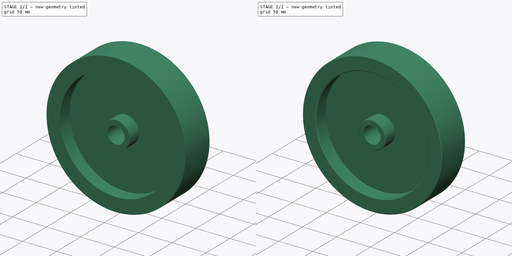
[diagram: build sequence overview — one tinted view per stage of 2, left to right]
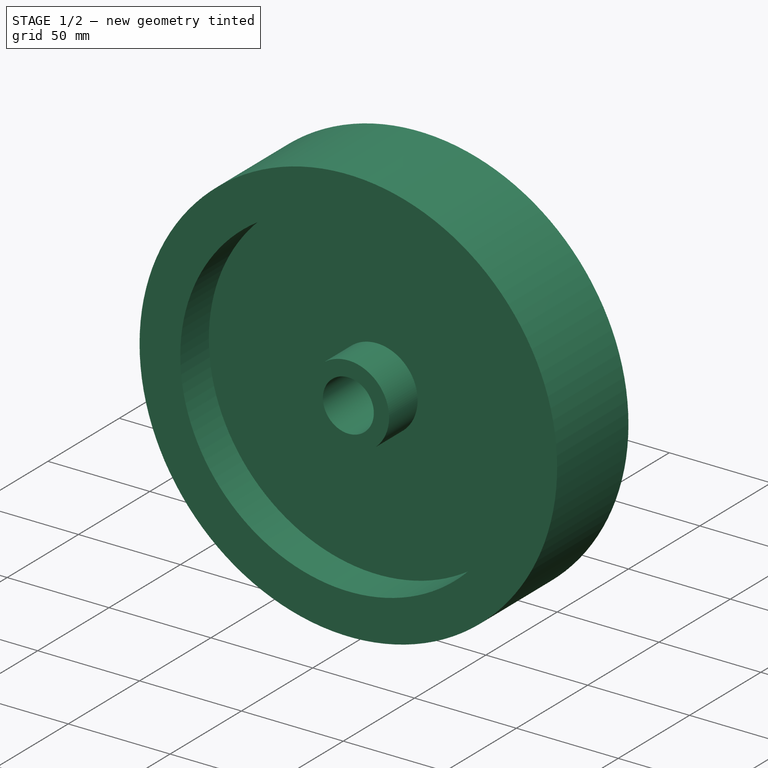
[diagram: stage 1 of 2 — iso view after this stage's code; geometry added in this stage tinted green]
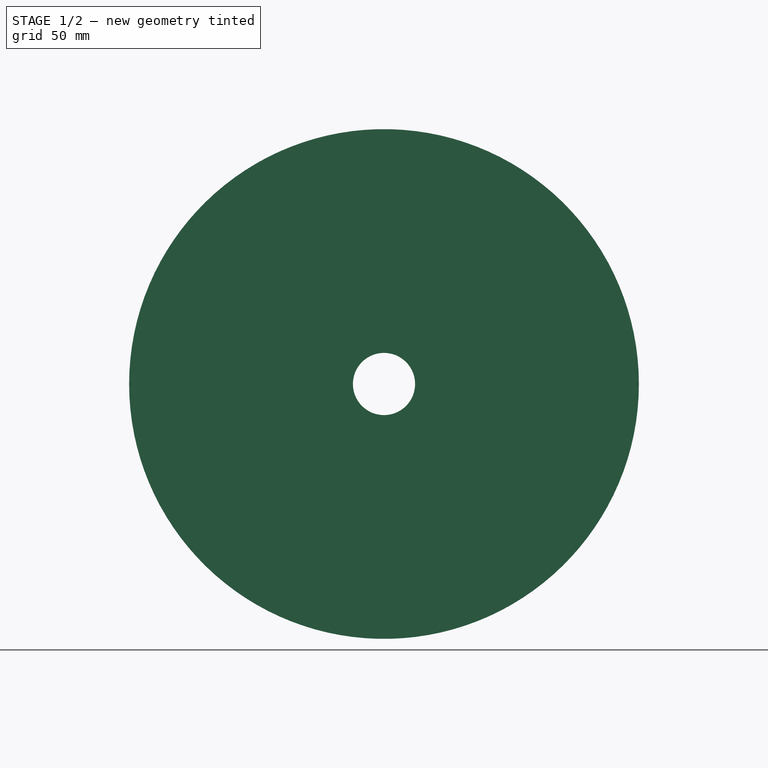
[diagram: stage 1 of 2 — front view after this stage's code; geometry added in this stage tinted green]
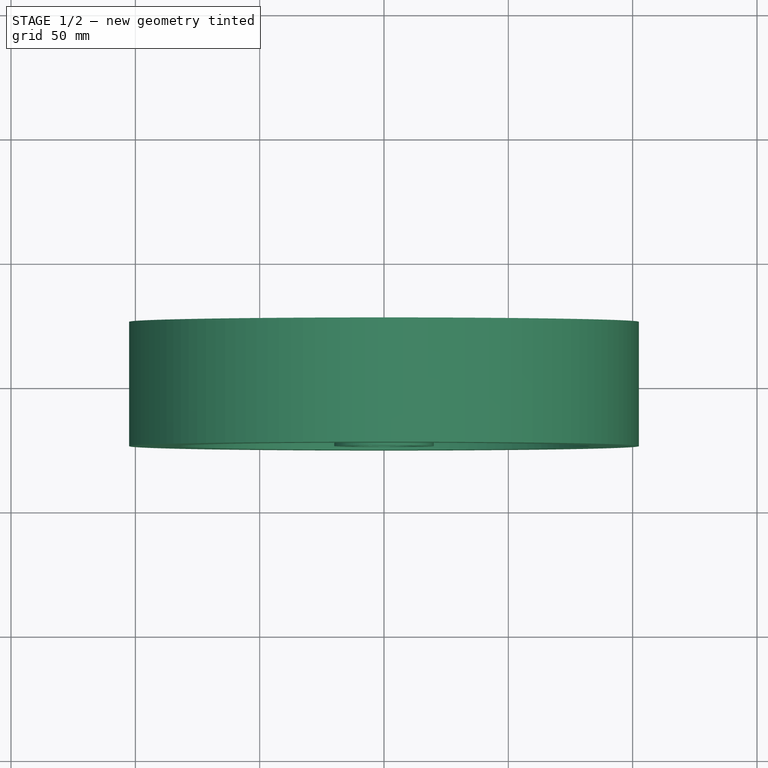
[diagram: stage 1 of 2 — top view after this stage's code; geometry added in this stage tinted green]
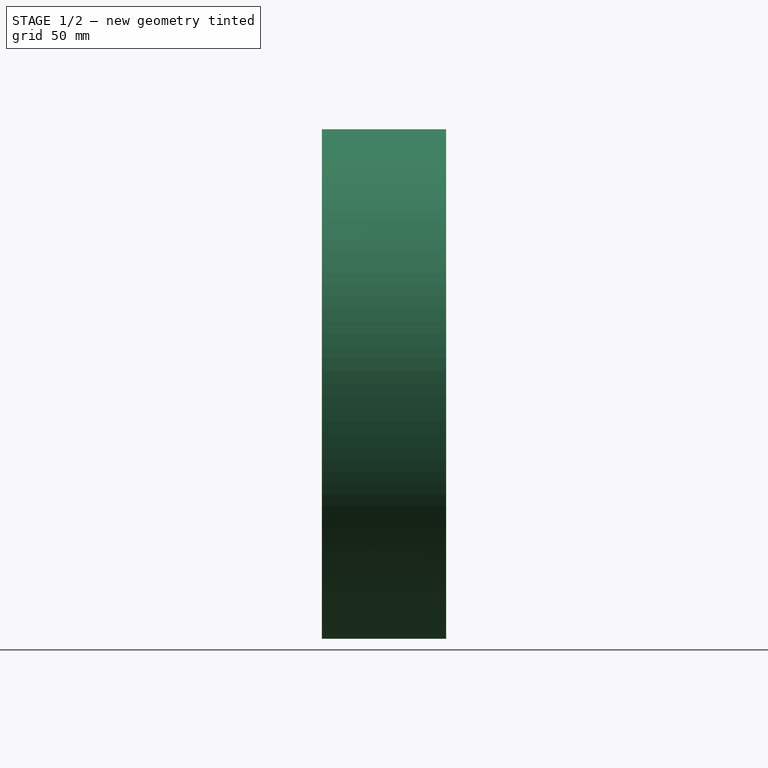
[diagram: stage 1 of 2 — right view after this stage's code; geometry added in this stage tinted green]
FCSTD DOCUMENT  (FreeCAD 0.21R33668 +26 (Git))
Label: hovairGuidageGalet
License: All rights reserved
LicenseURL: http://en.wikipedia.org/wiki/All_rights_reserved
objects: Sketcher::SketchObject×1, PartDesign::Revolution×1, PartDesign::Chamfer×1, PartDesign::Body×1
note: 6 computed .brp shape members not serialized (recipe doc carries the construction recipe); baked Part::Feature solids carry a one-line shape summary decoded from their .brp

FEATURE [Sketcher::SketchObject] Sketch
  FullyConstrained = false
  MapMode = 5
  Support = -> [XY_Plane]
  sketch-geometry (15):
    g0: LineSegment StartX=-102.5 StartY=1e-16 StartZ=0 EndX=-102.5 EndY=25 EndZ=0
    g1: LineSegment StartX=-102.5 StartY=25 StartZ=0 EndX=-82.5 EndY=25 EndZ=0
    g2: LineSegment StartX=-82.5 StartY=25 StartZ=0 EndX=-82.5 EndY=5 EndZ=0
    g3: LineSegment StartX=-82.5 StartY=5 StartZ=0 EndX=-20 EndY=5 EndZ=0
    g4: LineSegment StartX=-20 StartY=5 StartZ=0 EndX=-20 EndY=25 EndZ=0
    g5: LineSegment StartX=-20 StartY=25 StartZ=0 EndX=-12.5 EndY=25 EndZ=0
    g6: LineSegment StartX=-12.5 StartY=25 StartZ=0 EndX=-12.5 EndY=0 EndZ=0
    g7: LineSegment StartX=-158.478 StartY=0 StartZ=0 EndX=75.116 EndY=0 EndZ=0
    g8: LineSegment StartX=-102.5 StartY=1e-16 StartZ=0 EndX=-102.5 EndY=-25 EndZ=0
    g9: LineSegment StartX=-102.5 StartY=-25 StartZ=0 EndX=-82.5 EndY=-25 EndZ=0
    g10: LineSegment StartX=-82.5 StartY=-25 StartZ=0 EndX=-82.5 EndY=-5 EndZ=0
    g11: LineSegment StartX=-82.5 StartY=-5 StartZ=0 EndX=-20 EndY=-5 EndZ=0
    g12: LineSegment StartX=-20 StartY=-5 StartZ=0 EndX=-20 EndY=-25 EndZ=0
    g13: LineSegment StartX=-20 StartY=-25 StartZ=0 EndX=-12.5 EndY=-25 EndZ=0
    g14: LineSegment StartX=-12.5 StartY=-25 StartZ=0 EndX=-12.5 EndY=0 EndZ=0
  constraints (45):
    c: Coincident(g0,g1)
    c: Coincident(g1,g2)
    c: Coincident(g2,g3)
    c: Coincident(g3,g4)
    c: Coincident(g4,g5)
    c: Coincident(g5,g6)
    c: Distance(g0) = 25
    c: Distance(g1) = 20
    c: Distance(g2) = 20
    c: Distance(g5) = 7.5
    c: Vertical(g0)
    c: Vertical(g2)
    c: Vertical(g4)
    c: Vertical(g6)
    c: Horizontal(g1)
    c: Horizontal(g3)
    c: Horizontal(g5)
    c: Equal(g0,g6)
    c: Equal(g2,g4)
    c: Distance(g0,g6) = 90
    c: DistanceX(g6,g-1) = 12.5
    c: DistanceY(g-1,g6) = 0
    c: Horizontal(g7)
    c: DistanceY(g7,g-1) = 0
    c: Coincident(g8,g9)
    c: Coincident(g9,g10)
    c: Coincident(g10,g11)
    c: Coincident(g11,g12)
    c: Coincident(g12,g13)
    c: Coincident(g13,g14)
    c: Distance(g8) = 25
    c: Distance(g9) = 20
    c: Distance(g10) = 20
    c: Distance(g13) = 7.5
    c: Vertical(g8)
    c: Vertical(g10)
    c: Vertical(g12)
    c: Vertical(g14)
    c: Horizontal(g9)
    c: Horizontal(g11)
    c: Horizontal(g13)
    c: Equal(g8,g14)
    c: Equal(g10,g12)
    c: Distance(g8,g14) = 90
    c: Coincident(g8,g0)
FEATURE [PartDesign::Revolution] Revolution
  Angle = 360
  Axis = (0,1,0)
  Base = (0,0,0)
  Profile = -> Sketch
  ReferenceAxis = -> Sketch [V_Axis]
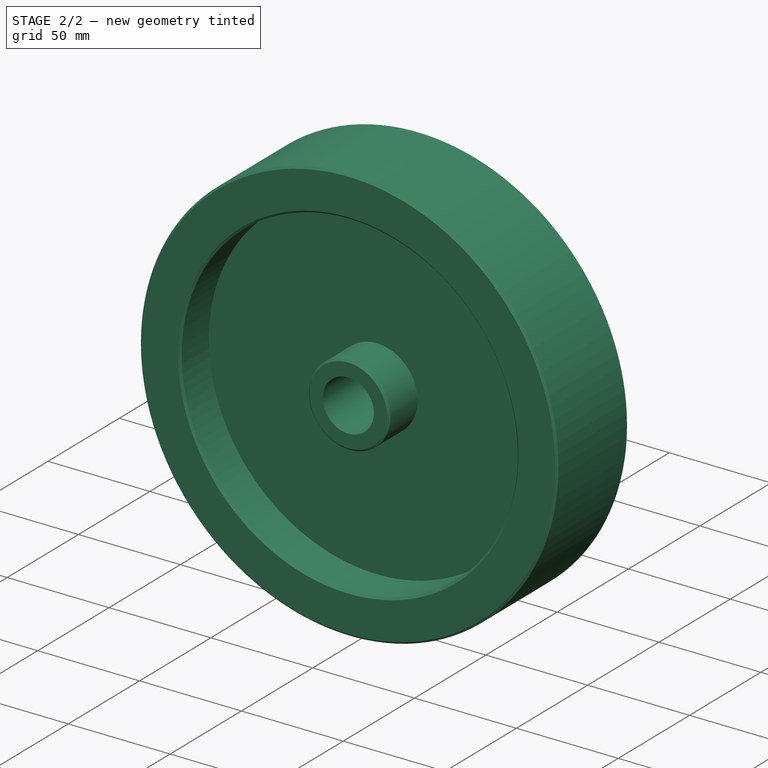
[diagram: stage 2 of 2 — iso view after this stage's code; geometry added in this stage tinted green]
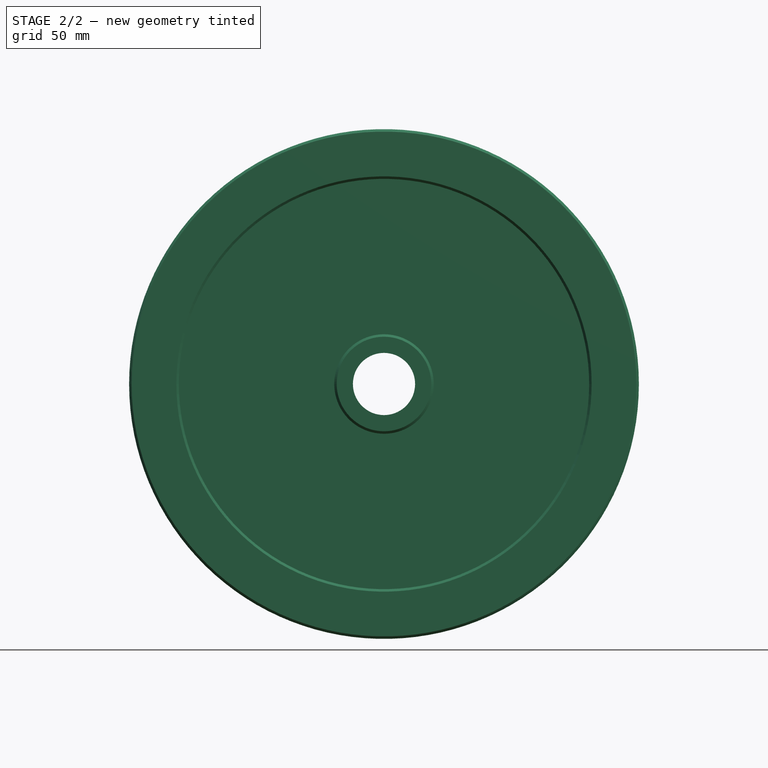
[diagram: stage 2 of 2 — front view after this stage's code; geometry added in this stage tinted green]
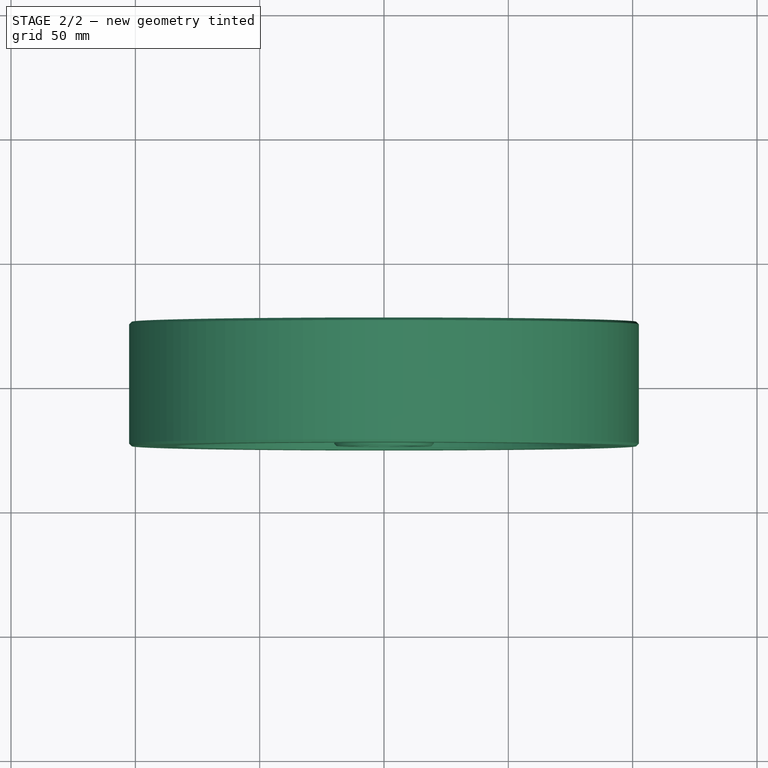
[diagram: stage 2 of 2 — top view after this stage's code; geometry added in this stage tinted green]
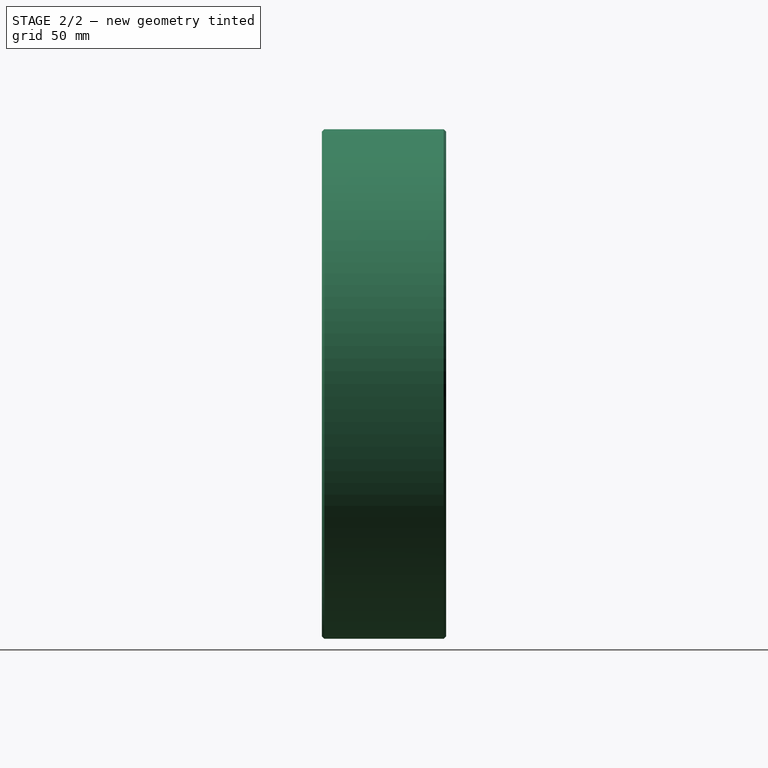
[diagram: stage 2 of 2 — right view after this stage's code; geometry added in this stage tinted green]
FEATURE [PartDesign::Chamfer] Chamfer
  Angle = 45
  Base = -> Revolution [Edge4,Edge21,Edge2,Edge8,Edge19,Edge15]
  BaseFeature = -> Revolution
  ChamferType = 0
  FlipDirection = false
  Size = 1
  Size2 = 1
  SupportTransform = false
  UseAllEdges = false
FEATURE [PartDesign::Body] Body  label="Corps"
  Group = -> [Sketch,Revolution,Chamfer]
  Origin = -> Origin
  Tip = -> Chamfer
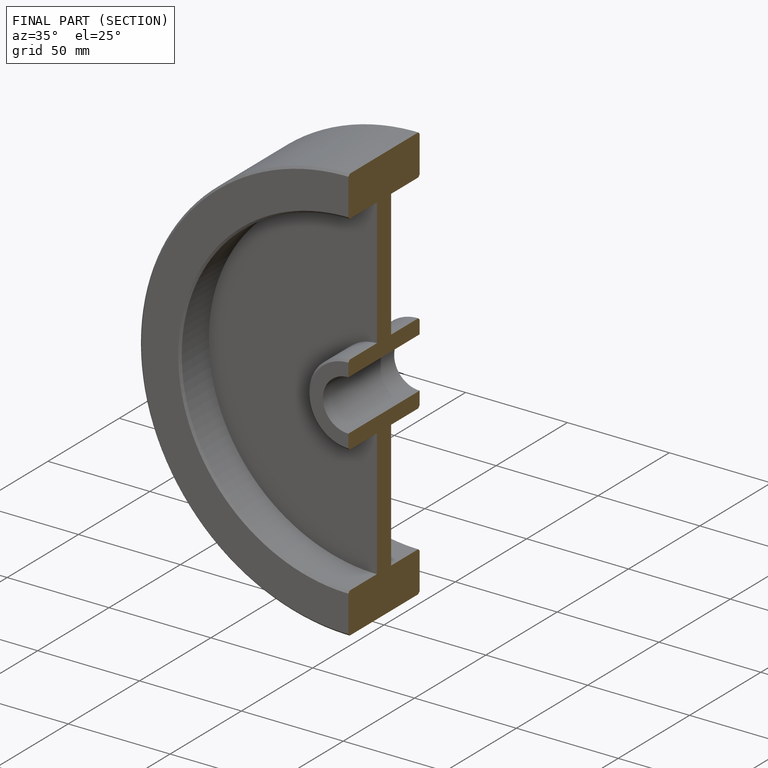
[diagram: finished part — half-section view (interior)]
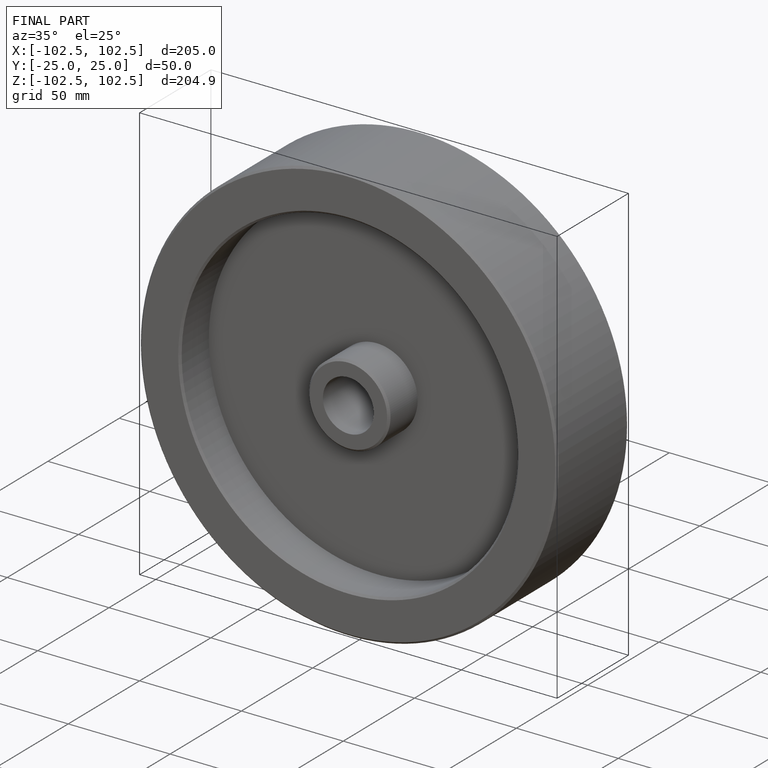
[diagram: finished part — iso view with bounding-box wireframe]
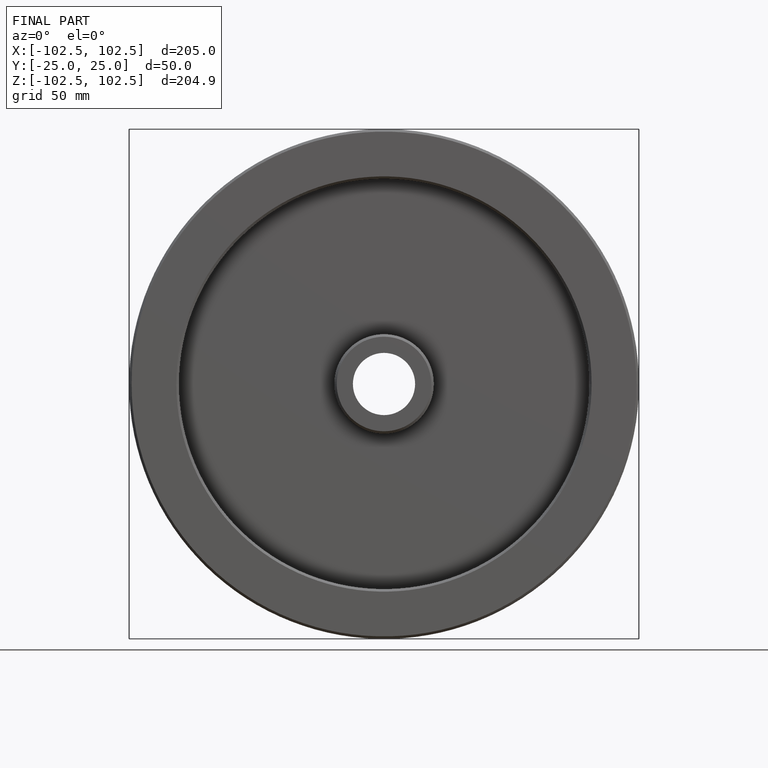
[diagram: finished part — front view with bounding-box wireframe]
